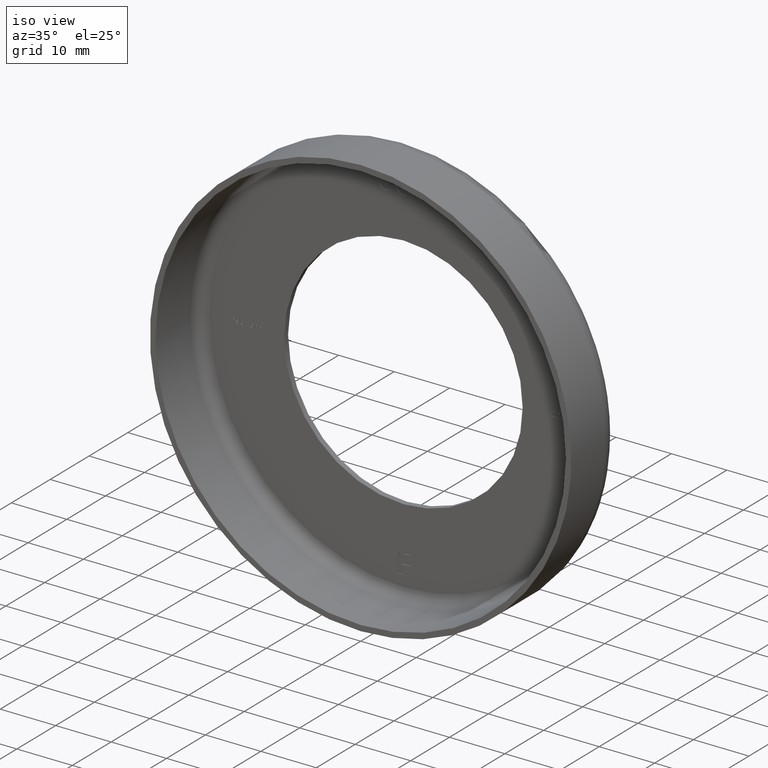
[diagram: clean part render]
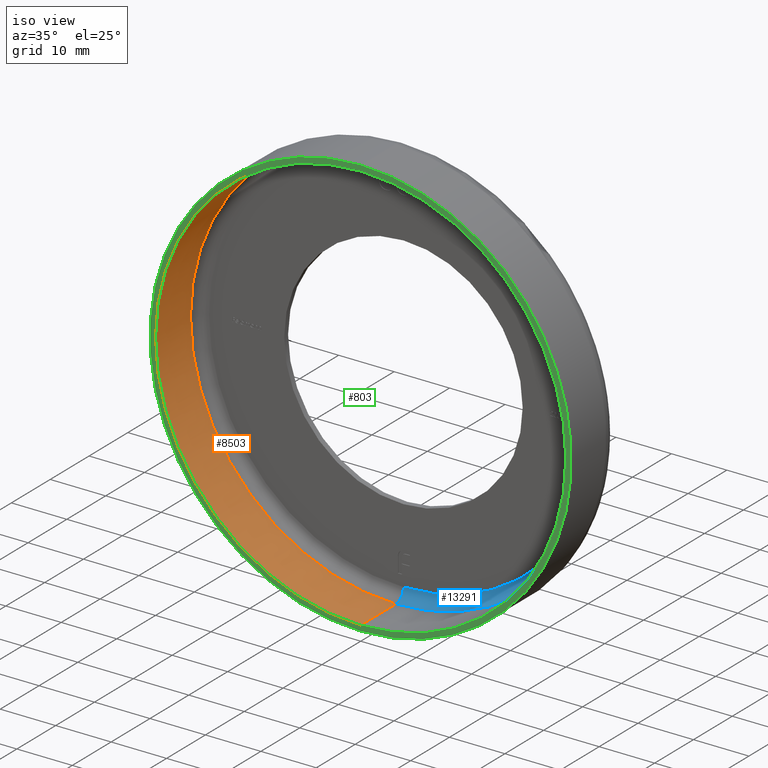
[diagram: same view with three faces highlighted in distinct colors, each labeled with its STEP entity id]
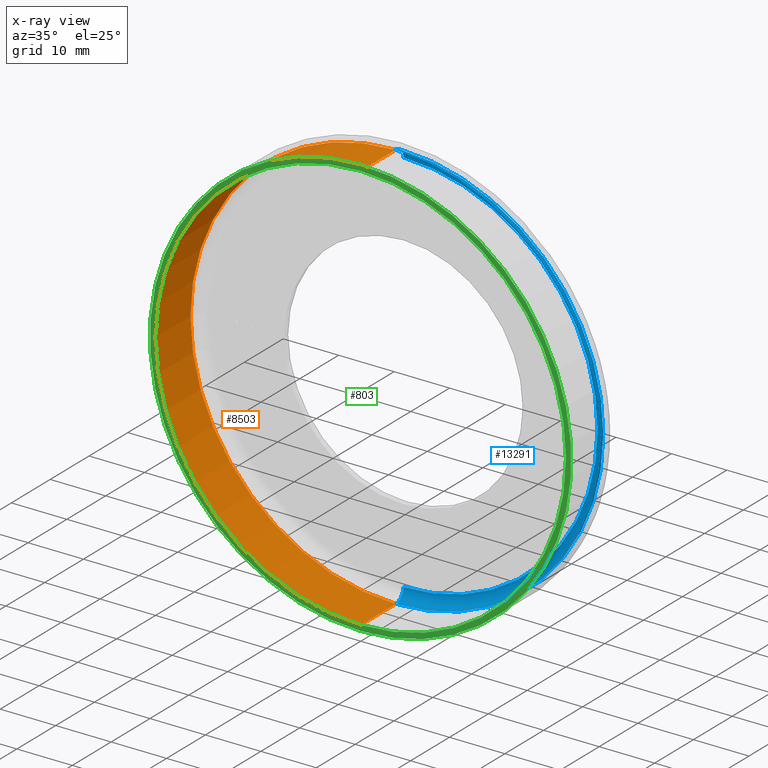
[diagram: x-ray of the same camera — body ghosted, the three highlighted faces saturated]
A machine part, iso view with three faces highlighted in distinct colors.
The next image is the same camera in x-ray (body ghosted, the three faces saturated) — at least one of them is partly hidden behind the body in this view.
Their STEP definitions:

[orange] entity #8503 — the highlighted cylindrical surface (partial cylindrical patch) has radius 37 mm, axis along (-0, -1, -0).
#1571 = CARTESIAN_POINT ( 'NONE',  ( 0.000000000000000000, 9.000000000000001776, -37.00000000000000711 ) ) ;
#1653 = ORIENTED_EDGE ( 'NONE', *, *, #3007, .F. ) ;
#2444 = AXIS2_PLACEMENT_3D ( 'NONE', #12151, #7225, #7273 ) ;
#2654 = CARTESIAN_POINT ( 'NONE',  ( 0.000000000000000000, 0.000000000000000000, 0.000000000000000000 ) ) ;
#3007 = EDGE_CURVE ( 'NONE', #7177, #10805, #5718, .T. ) ;
#4232 = CIRCLE ( 'NONE', #14942, 37.00000000000000711 ) ;
#4248 = CYLINDRICAL_SURFACE ( 'NONE', #8701, 37.00000000000000711 ) ;
#4440 = DIRECTION ( 'NONE',  ( -0.000000000000000000, -1.000000000000000000, -0.000000000000000000 ) ) ;
#5066 = DIRECTION ( 'NONE',  ( -0.000000000000000000, -1.000000000000000000, -0.000000000000000000 ) ) ;
#5396 = EDGE_LOOP ( 'NONE', ( #1653, #11475, #9905, #11997 ) ) ;
#5675 = VERTEX_POINT ( 'NONE', #9055 ) ;
#5718 = CIRCLE ( 'NONE', #2444, 37.00000000000000711 ) ;
#6380 = VERTEX_POINT ( 'NONE', #7795 ) ;
#6838 = VECTOR ( 'NONE', #11505, 1000.000000000000000 ) ;
#7177 = VERTEX_POINT ( 'NONE', #11480 ) ;
#7225 = DIRECTION ( 'NONE',  ( -0.000000000000000000, -1.000000000000000000, -0.000000000000000000 ) ) ;
#7273 = DIRECTION ( 'NONE',  ( 0.000000000000000000, 0.000000000000000000, -1.000000000000000000 ) ) ;
#7598 = LINE ( 'NONE', #14071, #6838 ) ;
#7795 = CARTESIAN_POINT ( 'NONE',  ( 4.531193156845207581E-15, -1.224646799147353207E-16, 37.00000000000000711 ) ) ;
#8304 = DIRECTION ( 'NONE',  ( -0.000000000000000000, -1.000000000000000000, -0.000000000000000000 ) ) ;
#8503 = ADVANCED_FACE ( 'NONE', ( #12668 ), #4248, .F. ) ;
#8701 = AXIS2_PLACEMENT_3D ( 'NONE', #2654, #5066, #14755 ) ;
#8720 = EDGE_CURVE ( 'NONE', #10805, #5675, #7598, .T. ) ;
#8733 = EDGE_CURVE ( 'NONE', #7177, #6380, #15281, .T. ) ;
#8861 = EDGE_CURVE ( 'NONE', #6380, #5675, #4232, .T. ) ;
#9055 = CARTESIAN_POINT ( 'NONE',  ( 0.000000000000000000, -1.224646799147353207E-16, -37.00000000000000711 ) ) ;
#9193 = CARTESIAN_POINT ( 'NONE',  ( 4.531193156845207581E-15, 0.000000000000000000, 37.00000000000000711 ) ) ;
#9638 = VECTOR ( 'NONE', #4440, 1000.000000000000000 ) ;
#9905 = ORIENTED_EDGE ( 'NONE', *, *, #8861, .T. ) ;
#10805 = VERTEX_POINT ( 'NONE', #1571 ) ;
#10901 = DIRECTION ( 'NONE',  ( 0.000000000000000000, 0.000000000000000000, -1.000000000000000000 ) ) ;
#11475 = ORIENTED_EDGE ( 'NONE', *, *, #8733, .T. ) ;
#11480 = CARTESIAN_POINT ( 'NONE',  ( 4.531193156845207581E-15, 9.000000000000001776, 37.00000000000000711 ) ) ;
#11505 = DIRECTION ( 'NONE',  ( -0.000000000000000000, -1.000000000000000000, -0.000000000000000000 ) ) ;
#11854 = CARTESIAN_POINT ( 'NONE',  ( 0.000000000000000000, -1.224646799147353207E-16, 0.000000000000000000 ) ) ;
#11997 = ORIENTED_EDGE ( 'NONE', *, *, #8720, .F. ) ;
#12151 = CARTESIAN_POINT ( 'NONE',  ( 0.000000000000000000, 9.000000000000001776, 0.000000000000000000 ) ) ;
#12668 = FACE_OUTER_BOUND ( 'NONE', #5396, .T. ) ;
#14071 = CARTESIAN_POINT ( 'NONE',  ( 0.000000000000000000, 0.000000000000000000, -37.00000000000000711 ) ) ;
#14755 = DIRECTION ( 'NONE',  ( 0.000000000000000000, 0.000000000000000000, -1.000000000000000000 ) ) ;
#14942 = AXIS2_PLACEMENT_3D ( 'NONE', #11854, #8304, #10901 ) ;
#15281 = LINE ( 'NONE', #9193, #9638 ) ;

[blue] entity #13291 — the highlighted toroidal blend (fillet) surface has major radius 35 mm and minor (blend) radius 2 mm.
#1103 = ORIENTED_EDGE ( 'NONE', *, *, #4096, .T. ) ;
#1166 = FACE_OUTER_BOUND ( 'NONE', #4180, .T. ) ;
#1225 = CARTESIAN_POINT ( 'NONE',  ( 4.408728476930472433E-15, 11.00000000000000178, 35.00000000000000000 ) ) ;
#1571 = CARTESIAN_POINT ( 'NONE',  ( 0.000000000000000000, 9.000000000000001776, -37.00000000000000711 ) ) ;
#1736 = CIRCLE ( 'NONE', #4806, 2.000000000000001776 ) ;
#1912 = AXIS2_PLACEMENT_3D ( 'NONE', #3980, #7459, #12340 ) ;
#2013 = ORIENTED_EDGE ( 'NONE', *, *, #13414, .F. ) ;
#2071 = AXIS2_PLACEMENT_3D ( 'NONE', #8299, #9583, #8392 ) ;
#2491 = DIRECTION ( 'NONE',  ( 0.000000000000000000, 0.000000000000000000, 1.000000000000000000 ) ) ;
#3980 = CARTESIAN_POINT ( 'NONE',  ( 4.286263797015736496E-15, 9.000000000000001776, 35.00000000000000000 ) ) ;
#4096 = EDGE_CURVE ( 'NONE', #10805, #7177, #4769, .T. ) ;
#4180 = EDGE_LOOP ( 'NONE', ( #2013, #4836, #6216, #1103 ) ) ;
#4769 = CIRCLE ( 'NONE', #2071, 37.00000000000000711 ) ;
#4806 = AXIS2_PLACEMENT_3D ( 'NONE', #11962, #4948, #2491 ) ;
#4836 = ORIENTED_EDGE ( 'NONE', *, *, #15464, .F. ) ;
#4941 = TOROIDAL_SURFACE ( 'NONE', #11242, 35.00000000000000000, 2.000000000000000000 ) ;
#4948 = DIRECTION ( 'NONE',  ( -1.000000000000000000, 0.000000000000000000, 0.000000000000000000 ) ) ;
#5100 = CIRCLE ( 'NONE', #10635, 35.00000000000000000 ) ;
#5613 = CARTESIAN_POINT ( 'NONE',  ( 0.000000000000000000, 11.00000000000000178, -35.00000000000000000 ) ) ;
#5751 = CARTESIAN_POINT ( 'NONE',  ( 0.000000000000000000, 11.00000000000000178, 0.000000000000000000 ) ) ;
#5785 = VERTEX_POINT ( 'NONE', #1225 ) ;
#6216 = ORIENTED_EDGE ( 'NONE', *, *, #14448, .T. ) ;
#7177 = VERTEX_POINT ( 'NONE', #11480 ) ;
#7459 = DIRECTION ( 'NONE',  ( 1.000000000000000000, 0.000000000000000000, -1.224646799147353207E-16 ) ) ;
#8214 = DIRECTION ( 'NONE',  ( -0.000000000000000000, -1.000000000000000000, -0.000000000000000000 ) ) ;
#8299 = CARTESIAN_POINT ( 'NONE',  ( 0.000000000000000000, 9.000000000000001776, 0.000000000000000000 ) ) ;
#8392 = DIRECTION ( 'NONE',  ( 0.000000000000000000, 0.000000000000000000, -1.000000000000000000 ) ) ;
#9583 = DIRECTION ( 'NONE',  ( -0.000000000000000000, -1.000000000000000000, -0.000000000000000000 ) ) ;
#10183 = CIRCLE ( 'NONE', #1912, 2.000000000000001776 ) ;
#10624 = CARTESIAN_POINT ( 'NONE',  ( 0.000000000000000000, 9.000000000000001776, 0.000000000000000000 ) ) ;
#10635 = AXIS2_PLACEMENT_3D ( 'NONE', #5751, #8214, #10764 ) ;
#10764 = DIRECTION ( 'NONE',  ( 0.000000000000000000, 0.000000000000000000, -1.000000000000000000 ) ) ;
#10805 = VERTEX_POINT ( 'NONE', #1571 ) ;
#11057 = VERTEX_POINT ( 'NONE', #5613 ) ;
#11242 = AXIS2_PLACEMENT_3D ( 'NONE', #10624, #15485, #14338 ) ;
#11480 = CARTESIAN_POINT ( 'NONE',  ( 4.531193156845207581E-15, 9.000000000000001776, 37.00000000000000711 ) ) ;
#11962 = CARTESIAN_POINT ( 'NONE',  ( 0.000000000000000000, 9.000000000000001776, -35.00000000000000000 ) ) ;
#12340 = DIRECTION ( 'NONE',  ( -1.224646799147353454E-16, 0.000000000000000000, -1.000000000000000000 ) ) ;
#13291 = ADVANCED_FACE ( 'NONE', ( #1166 ), #4941, .F. ) ;
#13414 = EDGE_CURVE ( 'NONE', #5785, #7177, #10183, .T. ) ;
#14338 = DIRECTION ( 'NONE',  ( 0.000000000000000000, 0.000000000000000000, -1.000000000000000000 ) ) ;
#14448 = EDGE_CURVE ( 'NONE', #11057, #10805, #1736, .T. ) ;
#15464 = EDGE_CURVE ( 'NONE', #11057, #5785, #5100, .T. ) ;
#15485 = DIRECTION ( 'NONE',  ( -0.000000000000000000, -1.000000000000000000, -0.000000000000000000 ) ) ;

[green] entity #803 — the highlighted planar face has unit normal (0, -1, -0).
#803 = ADVANCED_FACE ( 'NONE', ( #10621, #7045 ), #3068, .T. ) ;
#825 = AXIS2_PLACEMENT_3D ( 'NONE', #11234, #2974, #9021 ) ;
#909 = ORIENTED_EDGE ( 'NONE', *, *, #1679, .T. ) ;
#1164 = ORIENTED_EDGE ( 'NONE', *, *, #8861, .F. ) ;
#1679 = EDGE_CURVE ( 'NONE', #2241, #11980, #11736, .T. ) ;
#2058 = DIRECTION ( 'NONE',  ( 0.000000000000000000, 0.000000000000000000, -1.000000000000000000 ) ) ;
#2241 = VERTEX_POINT ( 'NONE', #11324 ) ;
#2700 = AXIS2_PLACEMENT_3D ( 'NONE', #2798, #12200, #12309 ) ;
#2798 = CARTESIAN_POINT ( 'NONE',  ( 0.000000000000000000, -1.224646799147353207E-16, 0.000000000000000000 ) ) ;
#2974 = DIRECTION ( 'NONE',  ( -0.000000000000000000, -1.000000000000000000, -0.000000000000000000 ) ) ;
#3068 = PLANE ( 'NONE',  #10960 ) ;
#3226 = DIRECTION ( 'NONE',  ( 0.000000000000000000, -1.000000000000000000, -0.000000000000000000 ) ) ;
#3277 = CARTESIAN_POINT ( 'NONE',  ( 37.00000000000000711, -6.123233995736766036E-17, 0.000000000000000000 ) ) ;
#4232 = CIRCLE ( 'NONE', #14942, 37.00000000000000711 ) ;
#5076 = DIRECTION ( 'NONE',  ( -0.000000000000000000, -1.000000000000000000, -0.000000000000000000 ) ) ;
#5145 = ORIENTED_EDGE ( 'NONE', *, *, #13762, .F. ) ;
#5500 = CIRCLE ( 'NONE', #2700, 37.00000000000000711 ) ;
#5675 = VERTEX_POINT ( 'NONE', #9055 ) ;
#5901 = CARTESIAN_POINT ( 'NONE',  ( 0.000000000000000000, 0.000000000000000000, -38.00000000000000711 ) ) ;
#6221 = EDGE_CURVE ( 'NONE', #11980, #2241, #12883, .T. ) ;
#6314 = CARTESIAN_POINT ( 'NONE',  ( 0.000000000000000000, 0.000000000000000000, 0.000000000000000000 ) ) ;
#6380 = VERTEX_POINT ( 'NONE', #7795 ) ;
#7045 = FACE_BOUND ( 'NONE', #7874, .T. ) ;
#7760 = EDGE_LOOP ( 'NONE', ( #10536, #909 ) ) ;
#7795 = CARTESIAN_POINT ( 'NONE',  ( 4.531193156845207581E-15, -1.224646799147353207E-16, 37.00000000000000711 ) ) ;
#7874 = EDGE_LOOP ( 'NONE', ( #5145, #1164 ) ) ;
#8304 = DIRECTION ( 'NONE',  ( -0.000000000000000000, -1.000000000000000000, -0.000000000000000000 ) ) ;
#8323 = DIRECTION ( 'NONE',  ( 0.000000000000000000, 0.000000000000000000, -1.000000000000000000 ) ) ;
#8861 = EDGE_CURVE ( 'NONE', #6380, #5675, #4232, .T. ) ;
#9021 = DIRECTION ( 'NONE',  ( 0.000000000000000000, 0.000000000000000000, -1.000000000000000000 ) ) ;
#9055 = CARTESIAN_POINT ( 'NONE',  ( 0.000000000000000000, -1.224646799147353207E-16, -37.00000000000000711 ) ) ;
#10536 = ORIENTED_EDGE ( 'NONE', *, *, #6221, .T. ) ;
#10621 = FACE_OUTER_BOUND ( 'NONE', #7760, .T. ) ;
#10901 = DIRECTION ( 'NONE',  ( 0.000000000000000000, 0.000000000000000000, -1.000000000000000000 ) ) ;
#10960 = AXIS2_PLACEMENT_3D ( 'NONE', #3277, #3226, #2058 ) ;
#11234 = CARTESIAN_POINT ( 'NONE',  ( 0.000000000000000000, 0.000000000000000000, 0.000000000000000000 ) ) ;
#11324 = CARTESIAN_POINT ( 'NONE',  ( 4.653657836759942730E-15, 0.000000000000000000, 38.00000000000000711 ) ) ;
#11736 = CIRCLE ( 'NONE', #825, 38.00000000000000711 ) ;
#11854 = CARTESIAN_POINT ( 'NONE',  ( 0.000000000000000000, -1.224646799147353207E-16, 0.000000000000000000 ) ) ;
#11980 = VERTEX_POINT ( 'NONE', #5901 ) ;
#12200 = DIRECTION ( 'NONE',  ( -0.000000000000000000, -1.000000000000000000, -0.000000000000000000 ) ) ;
#12309 = DIRECTION ( 'NONE',  ( 0.000000000000000000, 0.000000000000000000, -1.000000000000000000 ) ) ;
#12402 = AXIS2_PLACEMENT_3D ( 'NONE', #6314, #5076, #8323 ) ;
#12883 = CIRCLE ( 'NONE', #12402, 38.00000000000000711 ) ;
#13762 = EDGE_CURVE ( 'NONE', #5675, #6380, #5500, .T. ) ;
#14942 = AXIS2_PLACEMENT_3D ( 'NONE', #11854, #8304, #10901 ) ;